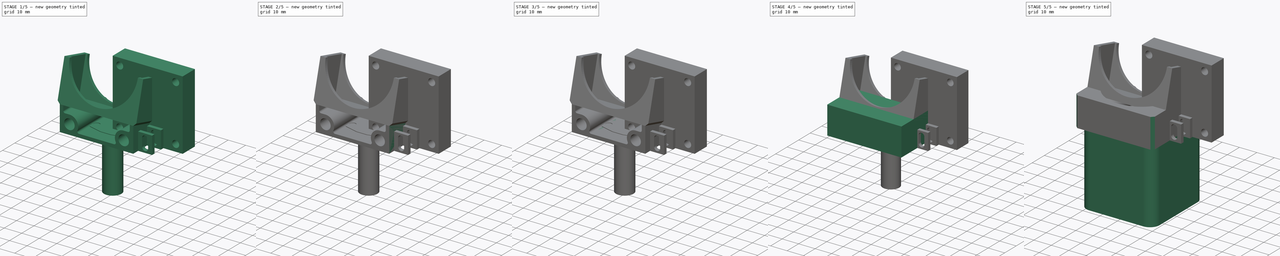
[diagram: build sequence overview — one tinted view per stage of 5, left to right]
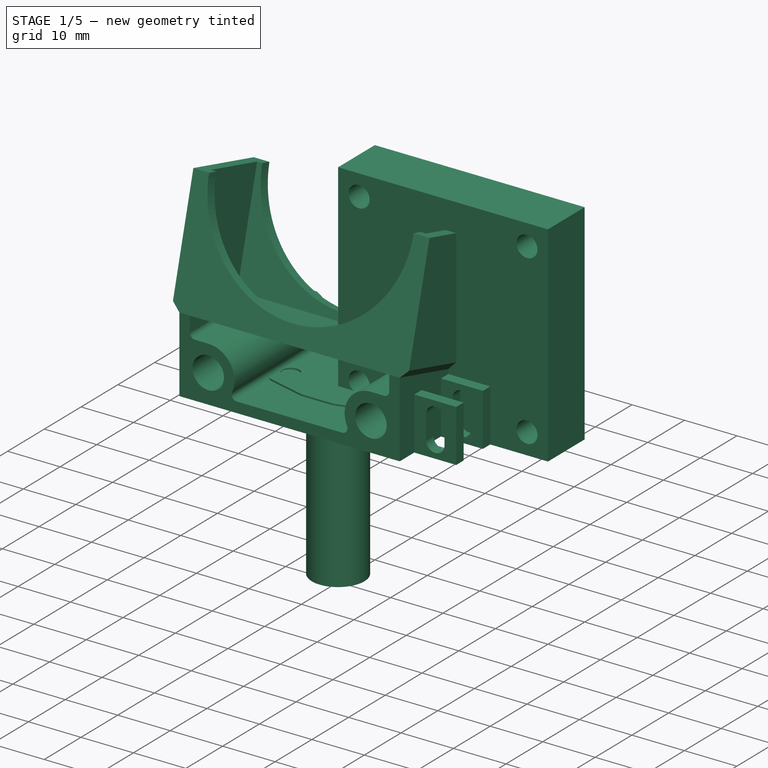
[diagram: stage 1 of 5 — iso view after this stage's code; geometry added in this stage tinted green]
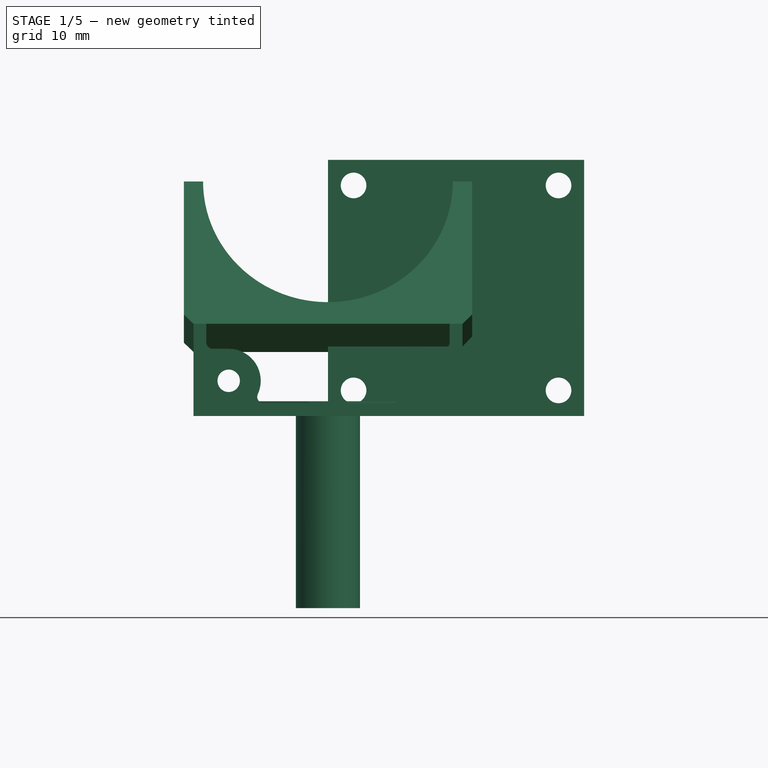
[diagram: stage 1 of 5 — front view after this stage's code; geometry added in this stage tinted green]
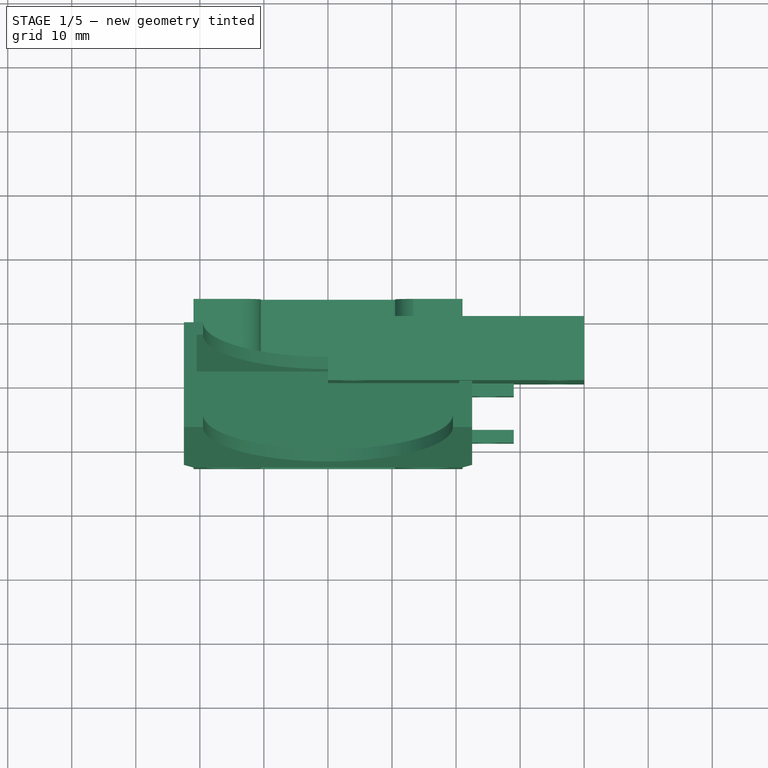
[diagram: stage 1 of 5 — top view after this stage's code; geometry added in this stage tinted green]
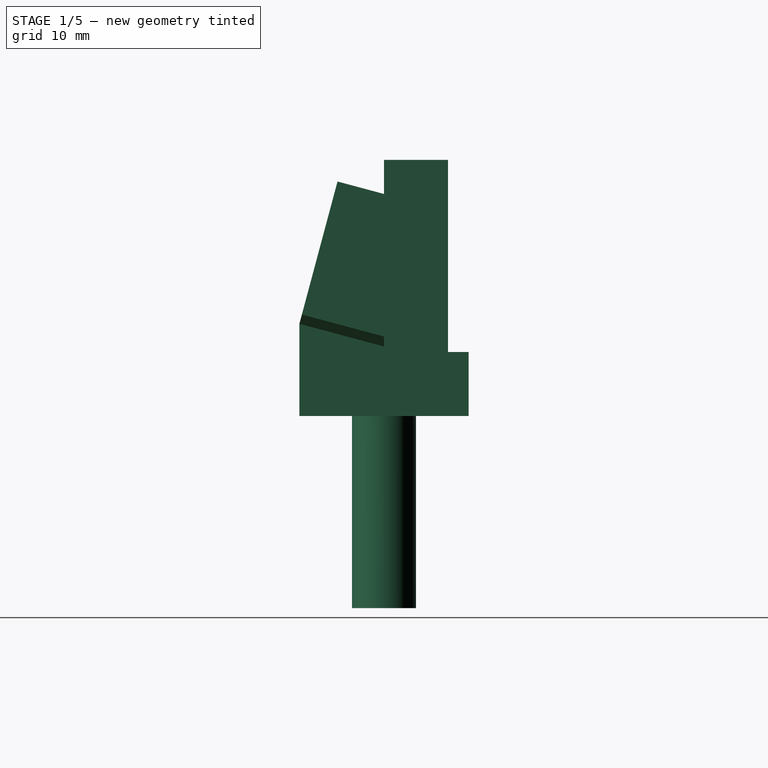
[diagram: stage 1 of 5 — right view after this stage's code; geometry added in this stage tinted green]
FCSTD DOCUMENT  (FreeCAD 0.17R13522 (Git))
Label: FanSensorMount_0.1
License: All rights reserved
LicenseURL: http://en.wikipedia.org/wiki/All_rights_reserved
objects: Sketcher::SketchObject×19, PartDesign::Pad×10, PartDesign::Pocket×9, Part::Feature×7, PartDesign::Body×6, PartDesign::Fillet×4, PartDesign::Chamfer×1, Part::MultiFuse×1, App::DocumentObjectGroup×1
note: 76 computed .brp shape members not serialized (recipe doc carries the construction recipe); baked Part::Feature solids carry a one-line shape summary decoded from their .brp

FEATURE [PartDesign::Body] Body002  label="Mount Bracket"
  Group = -> [Sketch004,Pad002,Sketch005,Pocket002,Sketch006,Pocket003,Sketch007,Pocket004,Fillet001,Fillet002,Sketch008,Pad003,Sketch013,Pad006,Sketch014,Pocket007]
  Origin = -> Origin002
  Tip = -> Pocket007
FEATURE [Part::Feature] Body002001  label="Mount Bracket001"
  shape: bbox 50 x 26.42 x 16.33 mm, 48 faces (baked)
FEATURE [Part::MultiFuse] Fusion  label="FanBracketUnion"
  Shapes = -> [Body001001,Body002001]
FEATURE [Part::Feature] Fusion001  label="FanBracket"
  shape: bbox 51.5 x 26.42 x 36.62 mm, 56 faces (baked)
FEATURE [Sketcher::SketchObject] Sketch015
  MapMode = 5
  Support = -> [XY_Plane004]
  sketch-geometry (4):
    g0: LineSegment StartX=0 StartY=0 StartZ=0 EndX=40 EndY=0 EndZ=0
    g1: LineSegment StartX=40 StartY=0 StartZ=0 EndX=40 EndY=10 EndZ=0
    g2: LineSegment StartX=40 StartY=10 StartZ=0 EndX=0 EndY=10 EndZ=0
    g3: LineSegment StartX=0 StartY=10 StartZ=0 EndX=0 EndY=0 EndZ=0
  constraints (11):
    c: Coincident(g0,g1)
    c: Coincident(g1,g2)
    c: Coincident(g2,g3)
    c: Coincident(g3,g0)
    c: Horizontal(g0)
    c: Horizontal(g2)
    c: Vertical(g1)
    c: Vertical(g3)
    c: Coincident(g0,g-1)
    c: Distance(g0) = 40
    c: Distance(g1) = 10
FEATURE [PartDesign::Pad] Pad007
  Length = 40
  Length2 = 100
  Profile = -> Sketch015
  Type = 0
FEATURE [Sketcher::SketchObject] Sketch016
  MapMode = 5
  Placement = pos=(0,0,0) rot=(1,0,0;1.5708rad)
  Support = -> [Pad007]
  sketch-geometry (8):
    g0: Circle CenterX=4 CenterY=36 CenterZ=0 NormalX=0 NormalY=0 NormalZ=1 AngleXU=0 Radius=2
    g1: Circle CenterX=36 CenterY=36 CenterZ=0 NormalX=0 NormalY=0 NormalZ=1 AngleXU=0 Radius=2
    g2: Circle CenterX=36 CenterY=4 CenterZ=0 NormalX=0 NormalY=0 NormalZ=1 AngleXU=0 Radius=2
    g3: Circle CenterX=4 CenterY=4 CenterZ=0 NormalX=0 NormalY=0 NormalZ=1 AngleXU=0 Radius=2
    g4: LineSegment [constr] StartX=4 StartY=36 StartZ=0 EndX=36 EndY=36 EndZ=0
    g5: LineSegment [constr] StartX=36 StartY=36 StartZ=0 EndX=36 EndY=4 EndZ=0
    g6: LineSegment [constr] StartX=36 StartY=4 StartZ=0 EndX=4 EndY=4 EndZ=0
    g7: LineSegment [constr] StartX=4 StartY=4 StartZ=0 EndX=4 EndY=36 EndZ=0
  constraints (20):
    c: Radius(g3) = 2
    c: Equal(g3,g0)
    c: Equal(g3,g1)
    c: Equal(g3,g2)
    c: Coincident(g4,g5)
    c: Coincident(g5,g6)
    c: Coincident(g6,g7)
    c: Coincident(g7,g4)
    c: Horizontal(g4)
    c: Horizontal(g6)
    c: Vertical(g5)
    c: Vertical(g7)
    c: Coincident(g4,g0)
    c: Coincident(g5,g2)
    c: Coincident(g1,g4)
    c: Coincident(g3,g6)
    c: Distance(g4) = 32
    c: Distance(g5) = 32
    c: DistanceY(g-1,g3) = 4
    c: DistanceX(g-1,g3) = 4
FEATURE [PartDesign::Pocket] Pocket008
  BaseFeature = -> Pad007
  Length = 5
  Length2 = 100
  Profile = -> Sketch016
  Type = 1
FEATURE [PartDesign::Body] Body001002002  label="Fan stand-in"
  Group = -> [Sketch015,Pad007,Sketch016,Pocket008]
  Origin = -> Origin004
  Tip = -> Pocket008
FEATURE [Part::Feature] Body001002002001  label="Fan stand-in001"
  Placement = pos=(-20,-9.31199,15.4259) rot=(1,0,0;6.02139rad)
  shape: bbox 40 x 20.01 x 41.23 mm, 10 faces (baked)
FEATURE [Sketcher::SketchObject] Sketch017
  MapMode = 5
  Support = -> [XY_Plane005]
  expr: Constraints[24] = 3.2000000000000002 / 2
  sketch-geometry (10):
    g0: ArcOfCircle CenterX=-9 CenterY=0 CenterZ=0 NormalX=0 NormalY=0 NormalZ=1 AngleXU=0 Radius=4 StartAngle=1.83275 EndAngle=4.45043
    g1: ArcOfCircle CenterX=9 CenterY=0 CenterZ=0 NormalX=0 NormalY=0 NormalZ=1 AngleXU=0 Radius=4 StartAngle=4.97435 EndAngle=7.59202
    g2: LineSegment StartX=-3 StartY=5.75 StartZ=0 EndX=3 EndY=5.75 EndZ=0
    g3: LineSegment StartX=-3 StartY=-5.75 StartZ=0 EndX=3 EndY=-5.75 EndZ=0
    g4: LineSegment StartX=-10.0359 StartY=3.86354 StartZ=0 EndX=-3 EndY=5.75 EndZ=0
    g5: LineSegment StartX=-10.0359 StartY=-3.86354 StartZ=0 EndX=-3 EndY=-5.75 EndZ=0
    g6: LineSegment StartX=3 StartY=-5.75 StartZ=0 EndX=10.0359 EndY=-3.86354 EndZ=0
    g7: LineSegment StartX=10.0359 StartY=3.86354 StartZ=0 EndX=3 EndY=5.75 EndZ=0
    g8: Circle CenterX=-9 CenterY=0 CenterZ=0 NormalX=0 NormalY=0 NormalZ=1 AngleXU=0 Radius=1.6
    g9: Circle CenterX=9 CenterY=0 CenterZ=0 NormalX=0 NormalY=0 NormalZ=1 AngleXU=0 Radius=1.6
  constraints (26):
    c: PointOnObject(g0,g-1)
    c: Radius(g0) = 4
    c: PointOnObject(g1,g-1)
    c: Radius(g1) = 4
    c: Distance(g-1,g0) = 9
    c: Distance(g-1,g1) = 9
    c: Horizontal(g2)
    c: Horizontal(g3)
    c: Equal(g2,g3)
    c: Distance(g2) = 6
    c: DistanceX(g-1,g2) = 3
    c: DistanceX(g-1,g3) = 3
    c: DistanceY(g3,g-1) = 5.75
    c: DistanceY(g-1,g2) = 5.75
    c: Coincident(g4,g2)
    c: Coincident(g5,g3)
    c: Coincident(g6,g3)
    c: Coincident(g7,g2)
    c: Tangent(g4,g0) = 1.5708
    c: Tangent(g5,g0) = -1.5708
    c: Tangent(g7,g1) = -1.5708
    c: Tangent(g6,g1) = -1.5708
    c: Coincident(g8,g0)
    c: Coincident(g9,g1)
    c: Radius(g9) = 1.6
    c: Equal(g9,g8)
FEATURE [PartDesign::Pad] Pad008
  Length = 2.3
  Length2 = 100
  Profile = -> Sketch017
  Type = 0
FEATURE [Sketcher::SketchObject] Sketch018
  MapMode = 5
  Placement = pos=(0,0,0) rot=(1,0,0;3.14159rad)
  Support = -> [Pad008]
  sketch-geometry (1):
    g0: Circle CenterX=0 CenterY=0 CenterZ=0 NormalX=0 NormalY=0 NormalZ=1 AngleXU=0 Radius=5
  constraints (2):
    c: Coincident(g0,g-1)
    c: Radius(g0) = 5
FEATURE [PartDesign::Pad] Pad009
  BaseFeature = -> Pad008
  Length = 30
  Length2 = 100
  Profile = -> Sketch018
  Type = 0
FEATURE [PartDesign::Body] Body001002002002  label="Sensor Stand-in"
  Group = -> [Sketch017,Pad008,Sketch018,Pad009]
  Origin = -> Origin005
  Tip = -> Pad009
FEATURE [Part::Feature] Body001002001001  label="Sensor Mount Refined"
  Placement = pos=(0,-9.25,10) rot=(1,0,0;3.14159rad)
  shape: bbox 30 x 24 x 10 mm, 24 faces (baked)
FEATURE [Part::Feature] Body001002002002001  label="Sensor Stand-in001"
  Placement = pos=(48,-4.625,10) rot=(0,0,1;1.5708rad)
  shape: bbox 11.5 x 26 x 32.3 mm, 14 faces (baked)
FEATURE [App::DocumentObjectGroup] Group  label="Assembly"
  Group = -> [Body003,Fusion,Fusion001,Body001002002001,Body001002002002001,Body001002001001]
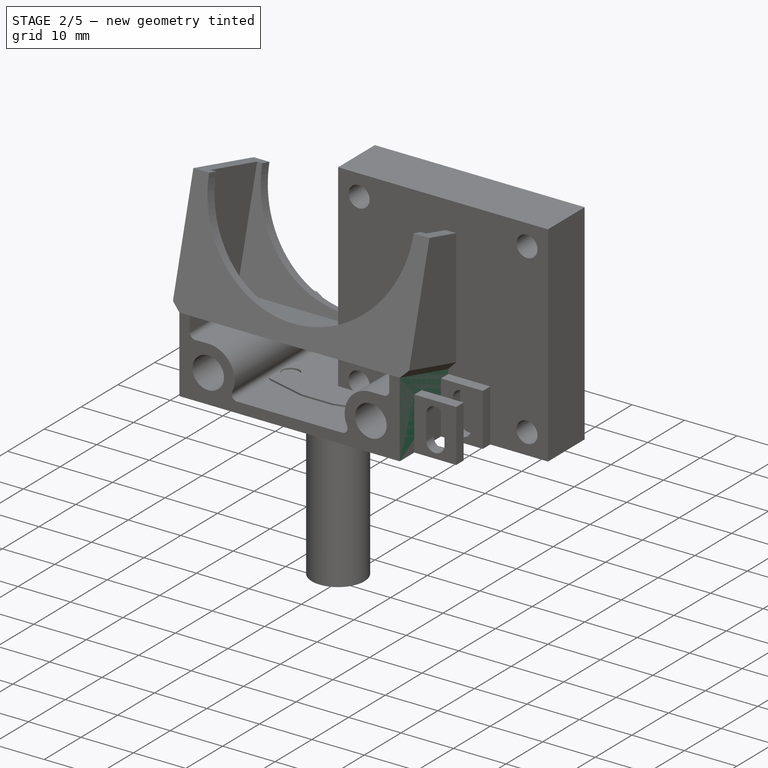
[diagram: stage 2 of 5 — iso view after this stage's code; geometry added in this stage tinted green]
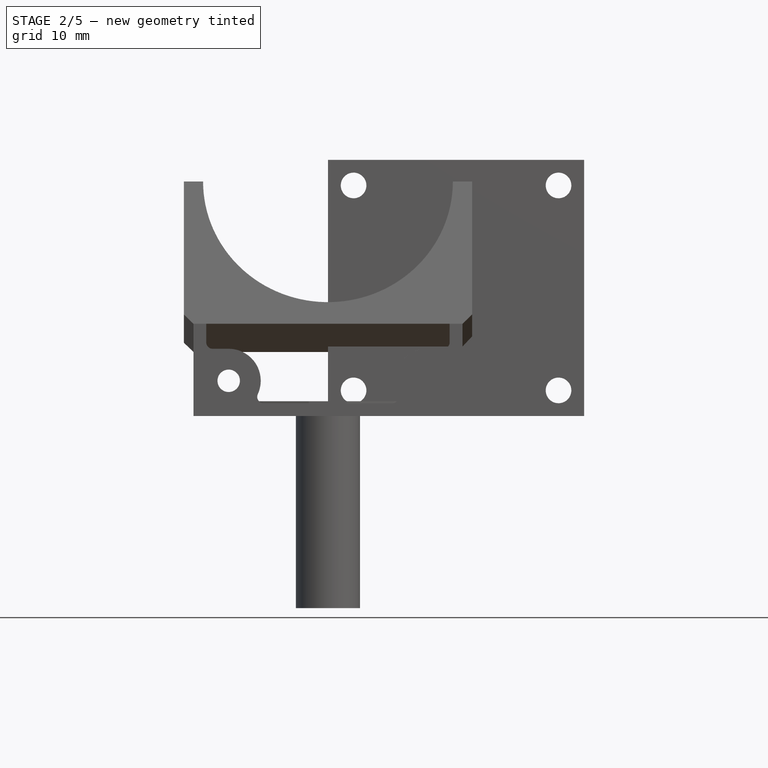
[diagram: stage 2 of 5 — front view after this stage's code; geometry added in this stage tinted green]
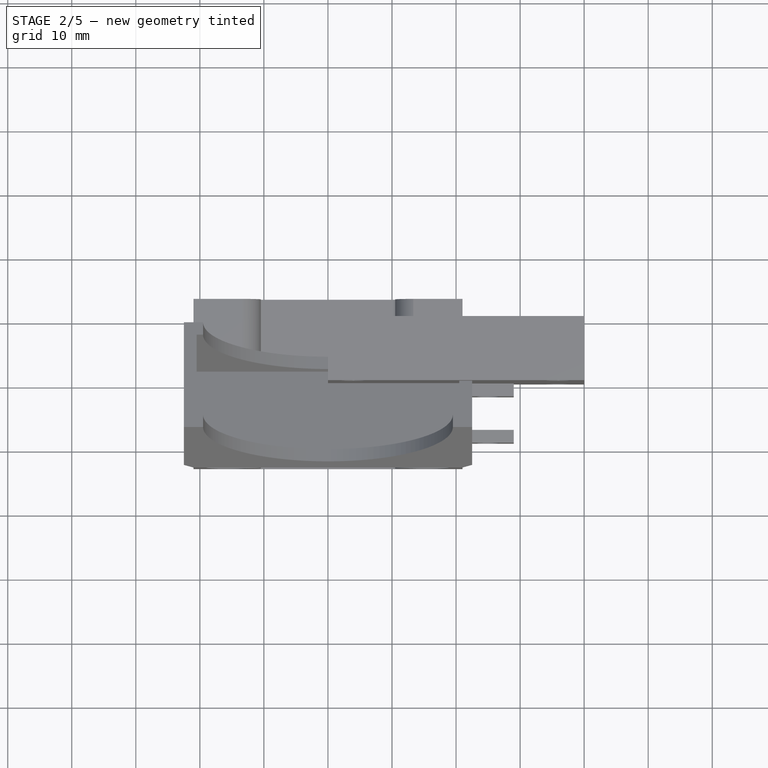
[diagram: stage 2 of 5 — top view after this stage's code; geometry added in this stage tinted green]
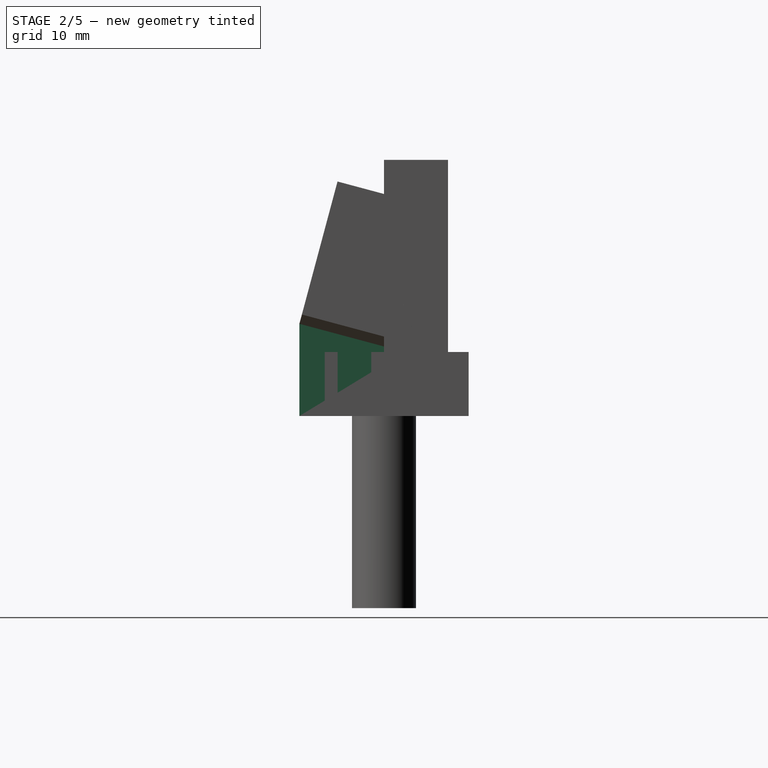
[diagram: stage 2 of 5 — right view after this stage's code; geometry added in this stage tinted green]
FEATURE [Sketcher::SketchObject] Sketch004
  MapMode = 5
  Placement = pos=(0,0,0) rot=(0.57735,0.57735,0.57735;2.0944rad)
  Support = -> [YZ_Plane002]
  sketch-geometry (5):
    g0: LineSegment StartX=-13.2104 StartY=0 StartZ=0 EndX=13.2104 EndY=0 EndZ=0
    g1: LineSegment StartX=13.2104 StartY=0 StartZ=0 EndX=13.2104 EndY=10 EndZ=0
    g2: LineSegment StartX=13.2104 StartY=10 StartZ=0 EndX=3.21037 EndY=10 EndZ=0
    g3: LineSegment StartX=3.21037 StartY=10 StartZ=0 EndX=-13.2104 EndY=14.3999 EndZ=0
    g4: LineSegment StartX=-13.2104 StartY=14.3999 StartZ=0 EndX=-13.2104 EndY=0 EndZ=0
  constraints (15):
    c: PointOnObject(g0,g-1)
    c: PointOnObject(g0,g-1)
    c: Coincident(g1,g0)
    c: Vertical(g1)
    c: Coincident(g2,g1)
    c: Horizontal(g2)
    c: Coincident(g3,g2)
    c: Coincident(g4,g3)
    c: Coincident(g4,g0)
    c: Vertical(g4)
    c: DistanceX(g2,g2) = 10
    c: Angle(g3,g0) = 0.261799
    c: Distance(g3) = 17
    c: Symmetric(g0,g0,g-1)
    c: DistanceY(g1,g1) = 10
FEATURE [PartDesign::Pad] Pad002
  Length = 42
  Length2 = 100
  Midplane = true
  Placement = pos=(0,0,0) rot=(0.57735,0.57735,0.57735;2.0944rad)
  Profile = -> Sketch004
  Type = 0
FEATURE [Sketcher::SketchObject] Sketch005
  ExternalGeometry = -> [Pad002]
  MapMode = 5
  Placement = pos=(0,-13.2104,0) rot=(-0.57735,-0.57735,0.57735;4.18879rad)
  Support = -> [Pad002]
  sketch-geometry (3):
    g0: Circle CenterX=-5.5 CenterY=-15.5 CenterZ=0 NormalX=0 NormalY=0 NormalZ=1 AngleXU=0 Radius=3
    g1: Circle CenterX=-5.5 CenterY=15.5 CenterZ=0 NormalX=0 NormalY=0 NormalZ=1 AngleXU=0 Radius=3
    g2: LineSegment [constr] StartX=-5.5 StartY=-15.5 StartZ=0 EndX=-5.5 EndY=15.5 EndZ=0
  constraints (8):
    c: Coincident(g2,g0)
    c: Coincident(g2,g1)
    c: Vertical(g2)
    c: Distance(g2) = 31
    c: Radius(g0) = 3
    c: Equal(g0,g1)
    c: DistanceY(g-3,g0) = 5.5
    c: DistanceX(g0,g-3) = 5.5
FEATURE [PartDesign::Pocket] Pocket002
  BaseFeature = -> Pad002
  Length = 24
  Length2 = 100
  Placement = pos=(0,0,0) rot=(0.57735,0.57735,0.57735;2.0944rad)
  Profile = -> Sketch005
  Type = 0
FEATURE [Sketcher::SketchObject] Sketch006
  ExternalGeometry = -> [Pocket002]
  MapMode = 5
  Placement = pos=(0,-13.2104,0) rot=(-0.57735,-0.57735,0.57735;4.18879rad)
  Support = -> [Pocket002]
  sketch-geometry (9):
    g0: LineSegment StartX=-2 StartY=-11.9293 StartZ=0 EndX=-2 EndY=11.9293 EndZ=0
    g1: GeomPoint X=-2 Y=0 Z=0
    g2: ArcOfCircle CenterX=-5.5 CenterY=-15.5 CenterZ=0 NormalX=0 NormalY=0 NormalZ=1 AngleXU=0 Radius=5 StartAngle=0.795399 EndAngle=3.14159
    g3: ArcOfCircle CenterX=-5.5 CenterY=15.5 CenterZ=0 NormalX=0 NormalY=0 NormalZ=1 AngleXU=0 Radius=5 StartAngle=3.14159 EndAngle=5.48779
    g4: LineSegment StartX=-10.5 StartY=15.5 StartZ=0 EndX=-10.5 EndY=19 EndZ=0
    g5: LineSegment StartX=-10.5 StartY=19 StartZ=0 EndX=-14.3999 EndY=19 EndZ=0
    g6: LineSegment StartX=-14.3999 StartY=19 StartZ=0 EndX=-14.3999 EndY=-19 EndZ=0
    g7: LineSegment StartX=-14.3999 StartY=-19 StartZ=0 EndX=-10.5 EndY=-19 EndZ=0
    g8: LineSegment StartX=-10.5 StartY=-19 StartZ=0 EndX=-10.5 EndY=-15.5 EndZ=0
  constraints (26):
    c: Vertical(g0)
    c: PointOnObject(g1,g0)
    c: PointOnObject(g1,g-1)
    c: Symmetric(g0,g0,g1)
    c: Coincident(g2,g-4)
    c: Coincident(g2,g0)
    c: Coincident(g3,g-3)
    c: Coincident(g3,g0)
    c: DistanceX(g0,g-1) = 2
    c: Radius(g2) = 5
    c: Coincident(g3,g4)
    c: Vertical(g4)
    c: Coincident(g4,g5)
    c: Horizontal(g5)
    c: Coincident(g5,g6)
    c: Vertical(g6)
    c: Coincident(g6,g7)
    c: Horizontal(g7)
    c: Coincident(g7,g8)
    c: Coincident(g8,g2)
    c: Vertical(g8)
    c: DistanceX(g-7,g5) = 0
    c: DistanceY(g4,g-7) = 2
    c: DistanceY(g-7,g7) = 2
    c: DistanceX(g2,g2) = 5
    c: DistanceX(g3,g3) = 5
FEATURE [PartDesign::Pocket] Pocket003
  BaseFeature = -> Pocket002
  Length = 5
  Length2 = 100
  Placement = pos=(0,0,0) rot=(0.57735,0.57735,0.57735;2.0944rad)
  Profile = -> Sketch006
  Type = 1
FEATURE [Sketcher::SketchObject] Sketch007
  MapMode = 5
  Placement = pos=(0,10.7896,0) rot=(-0.57735,-0.57735,0.57735;4.18879rad)
  Support = -> [Pocket003]
  sketch-geometry (2):
    g0: Circle CenterX=-5.5 CenterY=15.5 CenterZ=0 NormalX=0 NormalY=0 NormalZ=1 AngleXU=0 Radius=1.75
    g1: Circle CenterX=-5.5 CenterY=-15.5 CenterZ=0 NormalX=0 NormalY=0 NormalZ=1 AngleXU=0 Radius=1.75
FEATURE [PartDesign::Pocket] Pocket004
  BaseFeature = -> Pocket003
  Length = 5
  Length2 = 100
  Placement = pos=(0,0,0) rot=(0.57735,0.57735,0.57735;2.0944rad)
  Profile = -> Sketch007
  Type = 1
FEATURE [PartDesign::Fillet] Fillet001
  Base = -> Pocket004 [Edge39,Edge37]
  BaseFeature = -> Pocket004
  Placement = pos=(0,0,0) rot=(0.57735,0.57735,0.57735;2.0944rad)
  Radius = 1
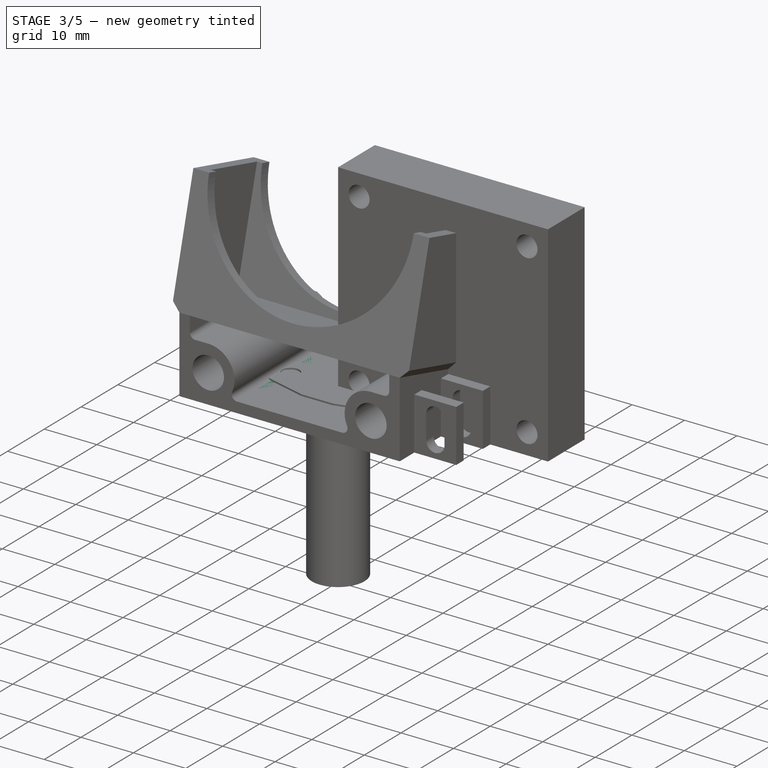
[diagram: stage 3 of 5 — iso view after this stage's code; geometry added in this stage tinted green]
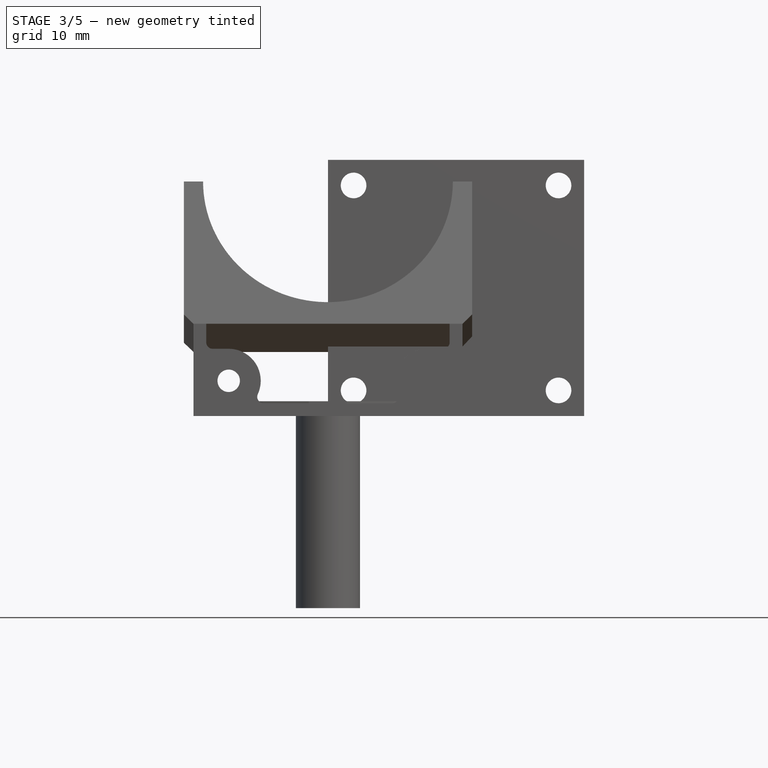
[diagram: stage 3 of 5 — front view after this stage's code; geometry added in this stage tinted green]
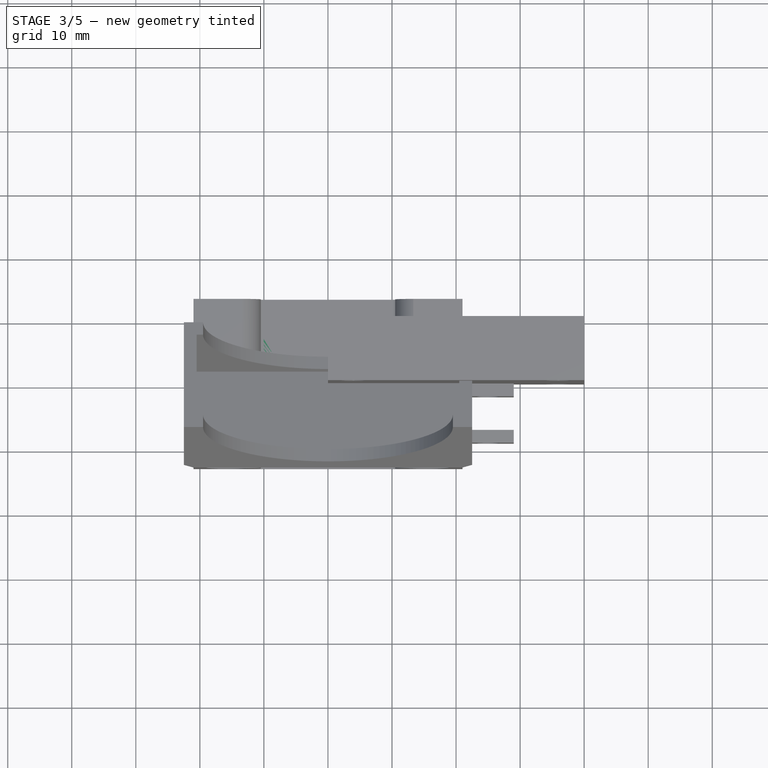
[diagram: stage 3 of 5 — top view after this stage's code; geometry added in this stage tinted green]
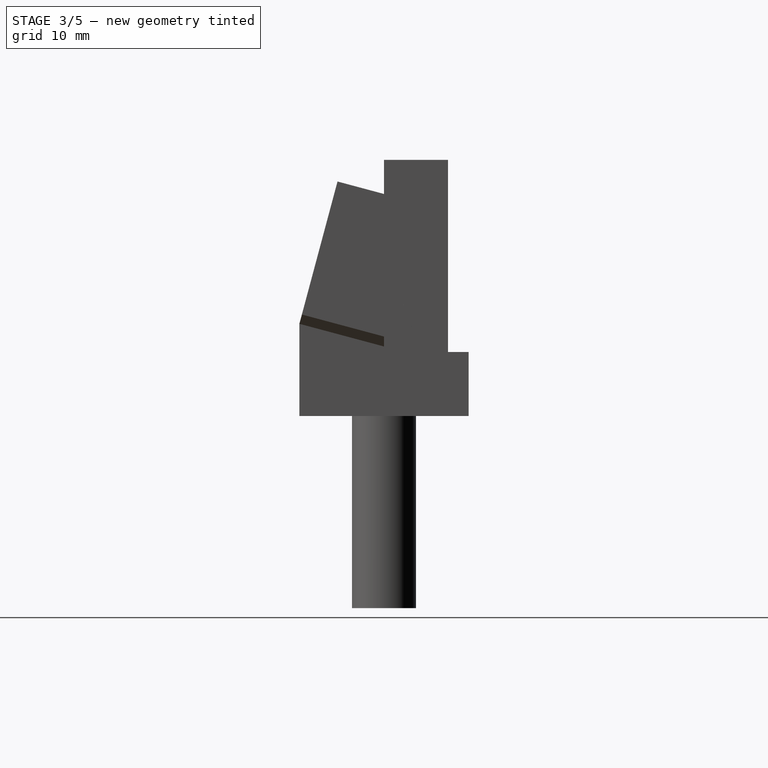
[diagram: stage 3 of 5 — right view after this stage's code; geometry added in this stage tinted green]
FEATURE [PartDesign::Fillet] Fillet002
  Base = -> Fillet001 [Edge41,Edge24]
  BaseFeature = -> Fillet001
  Placement = pos=(0,0,0) rot=(0.57735,0.57735,0.57735;2.0944rad)
  Radius = 1
FEATURE [PartDesign::Body] Body001  label="Fan Holder"
  Group = -> [Sketch001,Pad001,Sketch002,Pocket,Sketch003,Pocket001,Chamfer]
  Origin = -> Origin001
  Tip = -> Chamfer
FEATURE [Part::Feature] Body001001  label="Fan Holder001"
  Placement = pos=(0,9.16321,32.2163) rot=(1,0,0;1.309rad)
  shape: bbox 45 x 22.37 x 26.62 mm, 16 faces (baked)
FEATURE [Sketcher::SketchObject] Sketch008
  ExternalGeometry = -> [Fillet002]
  MapMode = 5
  Placement = pos=(0,2.71505,10.1327) rot=(-0.129428,-0.129428,-0.983106;1.58783rad)
  Support = -> [Fillet002]
  sketch-geometry (4):
    g0: LineSegment StartX=-0.512788 StartY=21 StartZ=0 EndX=16.4872 EndY=21 EndZ=0
    g1: LineSegment StartX=16.4872 StartY=21 StartZ=0 EndX=16.4872 EndY=-21 EndZ=0
    g2: LineSegment StartX=16.4872 StartY=-21 StartZ=0 EndX=-0.512788 EndY=-21 EndZ=0
    g3: LineSegment StartX=-0.512788 StartY=-21 StartZ=0 EndX=-0.512788 EndY=21 EndZ=0
  constraints (10):
    c: Coincident(g0,g1)
    c: Coincident(g1,g2)
    c: Coincident(g2,g3)
    c: Coincident(g3,g0)
    c: Horizontal(g0)
    c: Horizontal(g2)
    c: Vertical(g1)
    c: Vertical(g3)
    c: Coincident(g0,g-3)
    c: Coincident(g1,g-4)
FEATURE [PartDesign::Pad] Pad003
  BaseFeature = -> Fillet002
  Length = 2
  Length2 = 100
  Placement = pos=(0,0,0) rot=(0.57735,0.57735,0.57735;2.0944rad)
  Profile = -> Sketch008
  Type = 0
FEATURE [Sketcher::SketchObject] Sketch009
  MapMode = 5
  Support = -> [XY_Plane003]
  sketch-geometry (11):
    g0: Circle CenterX=0 CenterY=-9 CenterZ=0 NormalX=0 NormalY=0 NormalZ=1 AngleXU=0 Radius=1.75
    g1: Circle CenterX=0 CenterY=9 CenterZ=0 NormalX=0 NormalY=0 NormalZ=1 AngleXU=0 Radius=1.75
    g2: ArcOfCircle CenterX=0 CenterY=-9 CenterZ=0 NormalX=0 NormalY=0 NormalZ=1 AngleXU=0 Radius=3 StartAngle=4.71239 EndAngle=7.85398
    g3: ArcOfCircle CenterX=0 CenterY=9 CenterZ=0 NormalX=0 NormalY=0 NormalZ=1 AngleXU=0 Radius=3 StartAngle=4.71239 EndAngle=7.85398
    g4: LineSegment StartX=0 StartY=-12 StartZ=0 EndX=-5 EndY=-12 EndZ=0
    g5: LineSegment StartX=-5.00004 StartY=12 StartZ=0 EndX=0 EndY=12 EndZ=0
    g6: ArcOfCircle CenterX=-5 CenterY=0 CenterZ=0 NormalX=0 NormalY=0 NormalZ=1 AngleXU=0 Radius=6 StartAngle=1.5708 EndAngle=4.71239
    g7: LineSegment StartX=-5 StartY=-6 StartZ=0 EndX=0 EndY=-6 EndZ=0
    g8: LineSegment StartX=-5 StartY=6 StartZ=0 EndX=0 EndY=6 EndZ=0
    g9: GeomPoint X=-11 Y=0 Z=0
    g10: ArcOfCircle CenterX=-5 CenterY=0 CenterZ=0 NormalX=0 NormalY=0 NormalZ=1 AngleXU=0 Radius=12 StartAngle=1.5708 EndAngle=4.71239
  constraints (34):
    c: PointOnObject(g0,g-2)
    c: PointOnObject(g1,g-2)
    c: Radius(g0) = 1.75
    c: Equal(g0,g1)
    c: Symmetric(g1,g0,g-1)
    c: Coincident(g2,g0)
    c: PointOnObject(g2,g-2)
    c: PointOnObject(g2,g-2)
    c: Coincident(g3,g1)
    c: PointOnObject(g3,g-2)
    c: PointOnObject(g3,g-2)
    c: Radius(g3) = 3
    c: Equal(g3,g2)
    c: DistanceY(g0,g1) = 18
    c: Coincident(g4,g2)
    c: Coincident(g5,g3)
    c: Horizontal(g5)
    c: Horizontal(g4)
    c: PointOnObject(g6,g-1)
    c: Coincident(g7,g6)
    c: Coincident(g8,g6)
    c: Coincident(g8,g3)
    c: Horizontal(g8)
    c: Horizontal(g7)
    c: Coincident(g7,g2)
    c: PointOnObject(g9,g6)
    c: PointOnObject(g9,g-1)
    c: DistanceX(g9,g-1) = 11
    c: Radius(g6) = 6
    c: Coincident(g10,g6)
    c: Coincident(g10,g4)
    c: Coincident(g10,g5)
    c: Distance(g4) = 5
    c: Radius(g10) = 12
FEATURE [PartDesign::Pad] Pad004
  Length = 2
  Length2 = 100
  Profile = -> Sketch009
  Type = 0
FEATURE [PartDesign::Body] Body001002  label="Sensor Mount"
  Group = -> [Sketch009,Pad004,Sketch010,Pad005,Sketch011,Pocket005,Sketch012,Pocket006,Fillet003]
  Origin = -> Origin003
  Tip = -> Fillet003
FEATURE [Sketcher::SketchObject] Sketch013
  MapMode = 5
  Placement = pos=(21,0,0) rot=(0.57735,0.57735,0.57735;2.0944rad)
  Support = -> [Pad003]
  sketch-geometry (8):
    g0: LineSegment StartX=-9.25 StartY=10 StartZ=0 EndX=-7.25 EndY=10 EndZ=0
    g1: LineSegment StartX=-7.25 StartY=10 StartZ=0 EndX=-7.25 EndY=0 EndZ=0
    g2: LineSegment StartX=-7.25 StartY=0 StartZ=0 EndX=-9.25 EndY=0 EndZ=0
    g3: LineSegment StartX=-9.25 StartY=0 StartZ=0 EndX=-9.25 EndY=10 EndZ=0
    g4: LineSegment StartX=-2 StartY=10 StartZ=0 EndX=0 EndY=10 EndZ=0
    g5: LineSegment StartX=0 StartY=10 StartZ=0 EndX=0 EndY=0 EndZ=0
    g6: LineSegment StartX=0 StartY=0 StartZ=0 EndX=-2 EndY=0 EndZ=0
    g7: LineSegment StartX=-2 StartY=0 StartZ=0 EndX=-2 EndY=10 EndZ=0
  constraints (23):
    c: Coincident(g0,g1)
    c: Coincident(g1,g2)
    c: Coincident(g2,g3)
    c: Coincident(g3,g0)
    c: Horizontal(g0)
    c: Horizontal(g2)
    c: Vertical(g1)
    c: Vertical(g3)
    c: Coincident(g4,g5)
    c: Coincident(g5,g6)
    c: Coincident(g6,g7)
    c: Coincident(g7,g4)
    c: Horizontal(g4)
    c: Horizontal(g6)
    c: Vertical(g5)
    c: Vertical(g7)
    c: DistanceX(g1,g6) = 5.25
    c: Distance(g6) = 2
    c: Distance(g2) = 2
    c: Coincident(g5,g-1)
    c: DistanceY(g-1,g1) = 0
    c: Distance(g1) = 10
    c: Distance(g5) = 10
FEATURE [PartDesign::Pad] Pad006
  BaseFeature = -> Pad003
  Length = 8
  Length2 = 100
  Placement = pos=(0,0,0) rot=(0.57735,0.57735,0.57735;2.0944rad)
  Profile = -> Sketch013
  Type = 0
FEATURE [Sketcher::SketchObject] Sketch014
  ExternalGeometry = -> [Pad006]
  MapMode = 5
  Placement = pos=(0,-9.25,0) rot=(-0.57735,-0.57735,0.57735;4.18879rad)
  Support = -> [Pad006]
  sketch-geometry (6):
    g0: ArcOfCircle CenterX=-2.75 CenterY=25 CenterZ=0 NormalX=0 NormalY=0 NormalZ=1 AngleXU=0 Radius=1.75 StartAngle=4.71239 EndAngle=7.85398
    g1: ArcOfCircle CenterX=-7.25 CenterY=25 CenterZ=0 NormalX=0 NormalY=0 NormalZ=1 AngleXU=0 Radius=1.75 StartAngle=1.5708 EndAngle=4.71239
    g2: LineSegment StartX=-2.75 StartY=26.75 StartZ=0 EndX=-7.25 EndY=26.75 EndZ=0
    g3: LineSegment StartX=-2.75 StartY=23.25 StartZ=0 EndX=-7.25 EndY=23.25 EndZ=0
    g4: LineSegment [constr] StartX=-2.75 StartY=26.75 StartZ=0 EndX=-2.75 EndY=23.25 EndZ=0
    g5: LineSegment [constr] StartX=-7.25 StartY=26.75 StartZ=0 EndX=-7.25 EndY=23.25 EndZ=0
  constraints (18):
    c: Radius(g1) = 1.75
    c: Equal(g1,g0)
    c: DistanceY(g0,g-3) = 4
    c: Coincident(g2,g0)
    c: Coincident(g2,g1)
    c: Horizontal(g2)
    c: Coincident(g3,g0)
    c: Coincident(g3,g1)
    c: DistanceX(g-3,g1) = 2.75
    c: Equal(g2,g3)
    c: Coincident(g4,g0)
    c: Coincident(g4,g0)
    c: Vertical(g4)
    c: Coincident(g5,g1)
    c: Coincident(g5,g1)
    c: PointOnObject(g0,g4)
    c: PointOnObject(g1,g5)
    c: DistanceX(g0,g-3) = 2.75
FEATURE [PartDesign::Pocket] Pocket007
  BaseFeature = -> Pad006
  Length = 5
  Length2 = 100
  Placement = pos=(0,0,0) rot=(0.57735,0.57735,0.57735;2.0944rad)
  Profile = -> Sketch014
  Type = 1
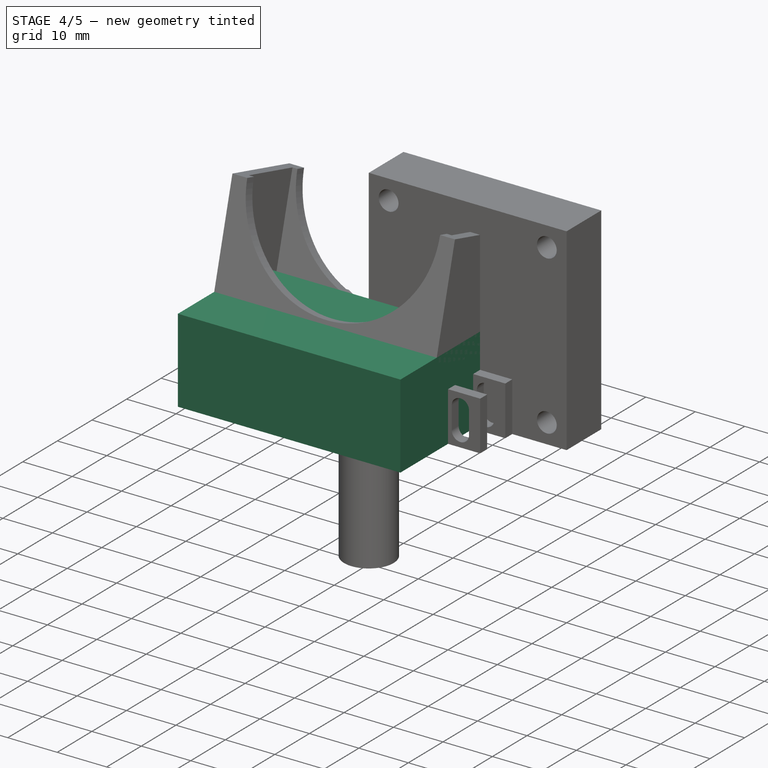
[diagram: stage 4 of 5 — iso view after this stage's code; geometry added in this stage tinted green]
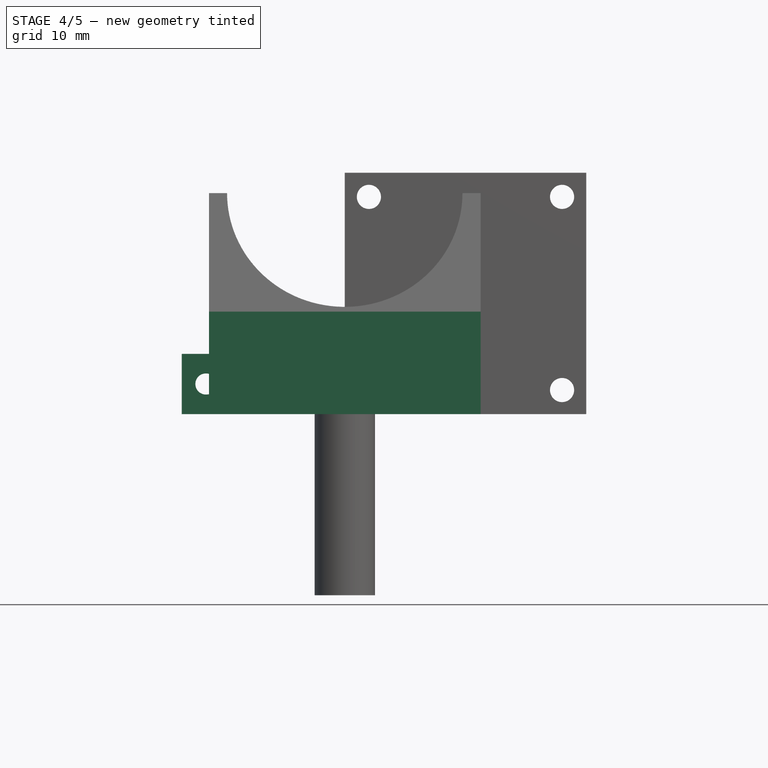
[diagram: stage 4 of 5 — front view after this stage's code; geometry added in this stage tinted green]
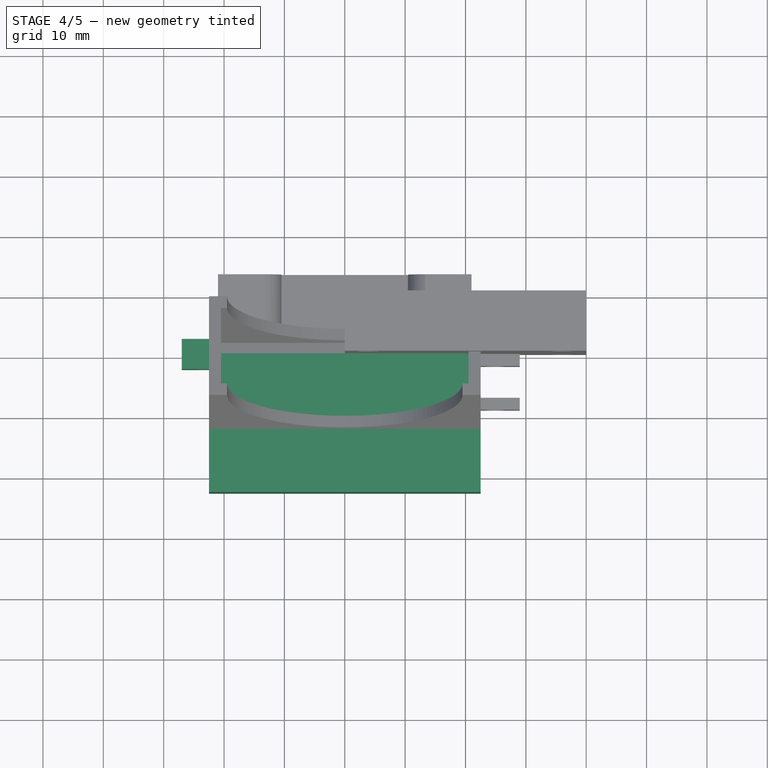
[diagram: stage 4 of 5 — top view after this stage's code; geometry added in this stage tinted green]
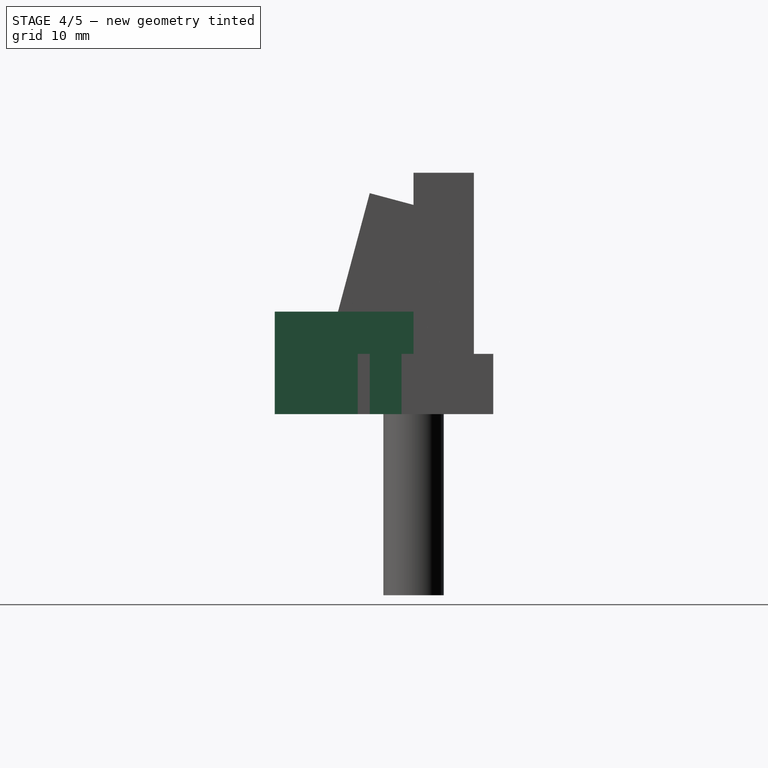
[diagram: stage 4 of 5 — right view after this stage's code; geometry added in this stage tinted green]
FEATURE [PartDesign::Body] Body  label="Nema 17 stand-in"
  Group = -> [Sketch,Pad,Fillet]
  Origin = -> Origin
  Tip = -> Fillet
FEATURE [Sketcher::SketchObject] Sketch001
  MapMode = 5
  Support = -> [XY_Plane001]
  sketch-geometry (4):
    g0: LineSegment StartX=-22.5 StartY=0 StartZ=0 EndX=22.5 EndY=0 EndZ=0
    g1: LineSegment StartX=22.5 StartY=0 StartZ=0 EndX=22.5 EndY=-23 EndZ=0
    g2: LineSegment StartX=22.5 StartY=-23 StartZ=0 EndX=-22.5 EndY=-23 EndZ=0
    g3: LineSegment StartX=-22.5 StartY=-23 StartZ=0 EndX=-22.5 EndY=0 EndZ=0
  constraints (12):
    c: Coincident(g0,g1)
    c: Coincident(g1,g2)
    c: Coincident(g2,g3)
    c: Coincident(g3,g0)
    c: Horizontal(g0)
    c: Horizontal(g2)
    c: Vertical(g1)
    c: Vertical(g3)
    c: PointOnObject(g0,g-1)
    c: DistanceY(g1,g0) = 23
    c: DistanceX(g2,g1) = 45
    c: Symmetric(g0,g0,g-1)
FEATURE [PartDesign::Pad] Pad001
  Length = 17
  Length2 = 100
  Profile = -> Sketch001
  Type = 0
FEATURE [Sketcher::SketchObject] Sketch010
  MapMode = 5
  Support = -> [XY_Plane003]
  sketch-geometry (5):
    g0: LineSegment StartX=-27 StartY=2.5 StartZ=0 EndX=-12 EndY=2.5 EndZ=0
    g1: LineSegment StartX=-12 StartY=2.5 StartZ=0 EndX=-12 EndY=-2.5 EndZ=0
    g2: LineSegment StartX=-12 StartY=-2.5 StartZ=0 EndX=-27 EndY=-2.5 EndZ=0
    g3: LineSegment StartX=-27 StartY=-2.5 StartZ=0 EndX=-27 EndY=2.5 EndZ=0
    g4: GeomPoint X=-27 Y=0 Z=0
  constraints (13):
    c: Coincident(g0,g1)
    c: Coincident(g1,g2)
    c: Coincident(g2,g3)
    c: Coincident(g3,g0)
    c: Horizontal(g0)
    c: Horizontal(g2)
    c: Vertical(g1)
    c: Vertical(g3)
    c: DistanceY(g3,g3) = 5
    c: DistanceX(g0,g0) = 15
    c: PointOnObject(g4,g-1)
    c: Symmetric(g0,g2,g4)
    c: DistanceX(g1,g-1) = 12
FEATURE [PartDesign::Pad] Pad005
  BaseFeature = -> Pad004
  Length = 10
  Length2 = 100
  Profile = -> Sketch010
  Type = 0
FEATURE [Sketcher::SketchObject] Sketch011
  ExternalGeometry = -> [Pad005]
  MapMode = 5
  Placement = pos=(0,-2.5,0) rot=(1,0,0;1.5708rad)
  Support = -> [Pad005]
  sketch-geometry (3):
    g0: LineSegment StartX=-12 StartY=2 StartZ=0 EndX=-20 EndY=10 EndZ=0
    g1: LineSegment StartX=-20 StartY=10 StartZ=0 EndX=-12 EndY=10 EndZ=0
    g2: LineSegment StartX=-12 StartY=10 StartZ=0 EndX=-12 EndY=2 EndZ=0
  constraints (7):
    c: Coincident(g0,g-3)
    c: PointOnObject(g0,g-4)
    c: Coincident(g1,g0)
    c: Coincident(g1,g-4)
    c: Coincident(g2,g1)
    c: Coincident(g2,g0)
    c: Angle(g0,g1) = 0.785398
FEATURE [PartDesign::Pocket] Pocket005
  BaseFeature = -> Pad005
  Length = 5
  Length2 = 100
  Profile = -> Sketch011
  Type = 0
FEATURE [Sketcher::SketchObject] Sketch012
  ExternalGeometry = -> [Pocket005]
  MapMode = 5
  Placement = pos=(0,-2.5,0) rot=(1,0,0;1.5708rad)
  Support = -> [Pocket005]
  sketch-geometry (1):
    g0: Circle CenterX=-23 CenterY=5 CenterZ=0 NormalX=0 NormalY=0 NormalZ=1 AngleXU=0 Radius=1.75
  constraints (3):
    c: Radius(g0) = 1.75
    c: DistanceX(g-3,g0) = 4
    c: DistanceY(g-3,g0) = 5
FEATURE [PartDesign::Pocket] Pocket006
  BaseFeature = -> Pocket005
  Length = 5
  Length2 = 100
  Profile = -> Sketch012
  Type = 0
FEATURE [PartDesign::Fillet] Fillet003
  Base = -> Pocket006 [Edge24,Edge22,Edge26,Edge43,Edge6]
  BaseFeature = -> Pocket006
  Radius = 2
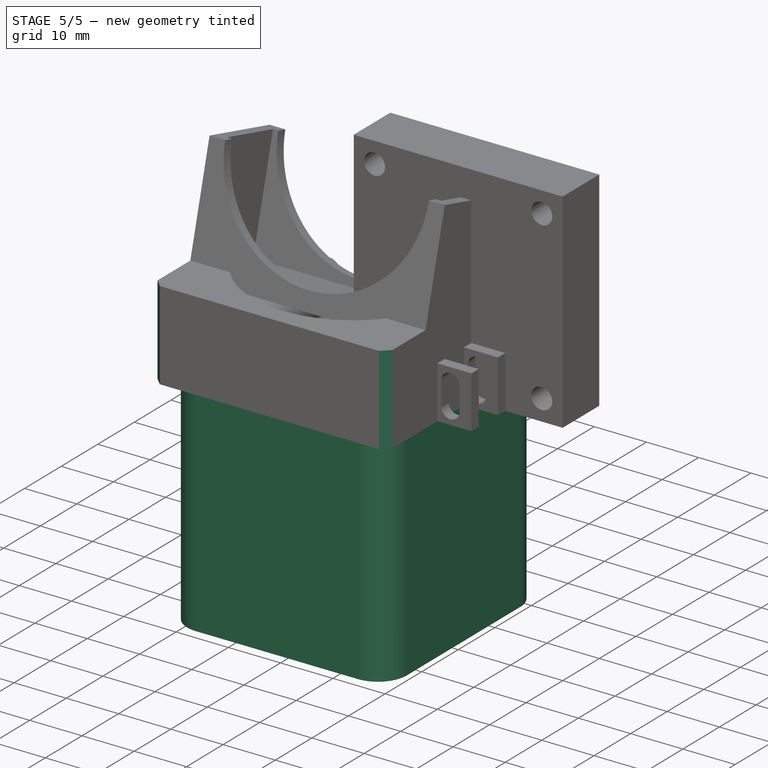
[diagram: stage 5 of 5 — iso view after this stage's code; geometry added in this stage tinted green]
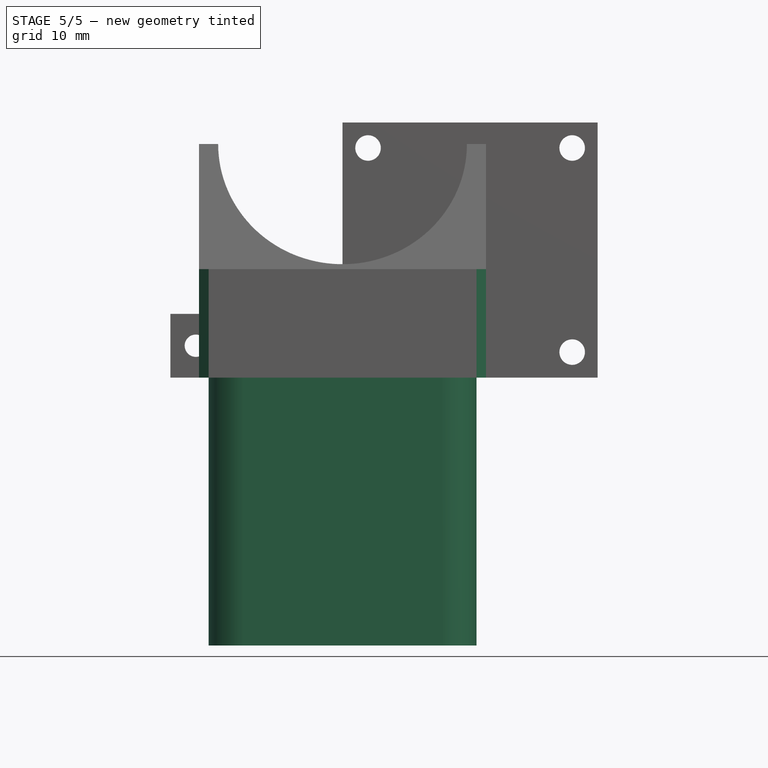
[diagram: stage 5 of 5 — front view after this stage's code; geometry added in this stage tinted green]
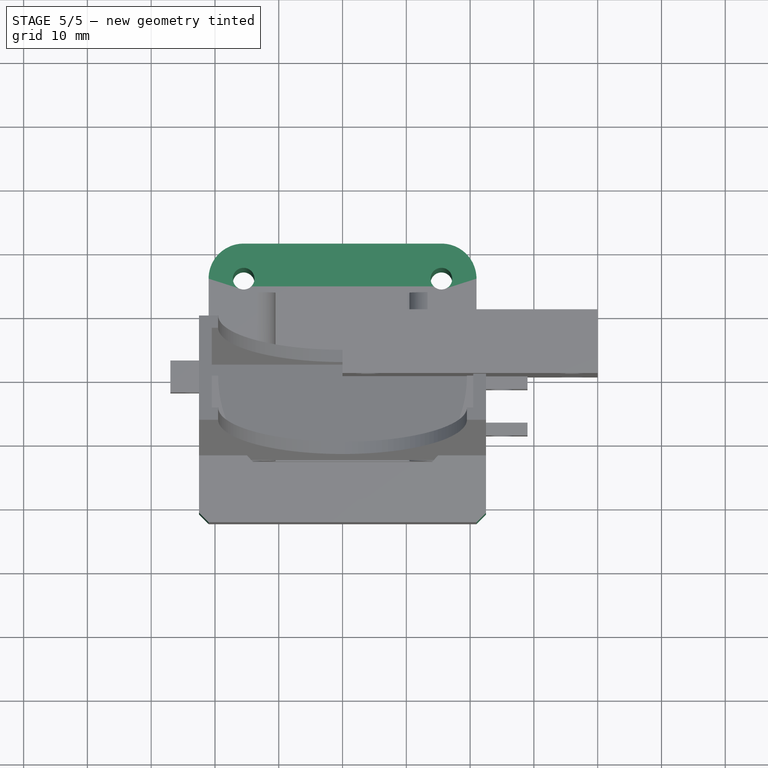
[diagram: stage 5 of 5 — top view after this stage's code; geometry added in this stage tinted green]
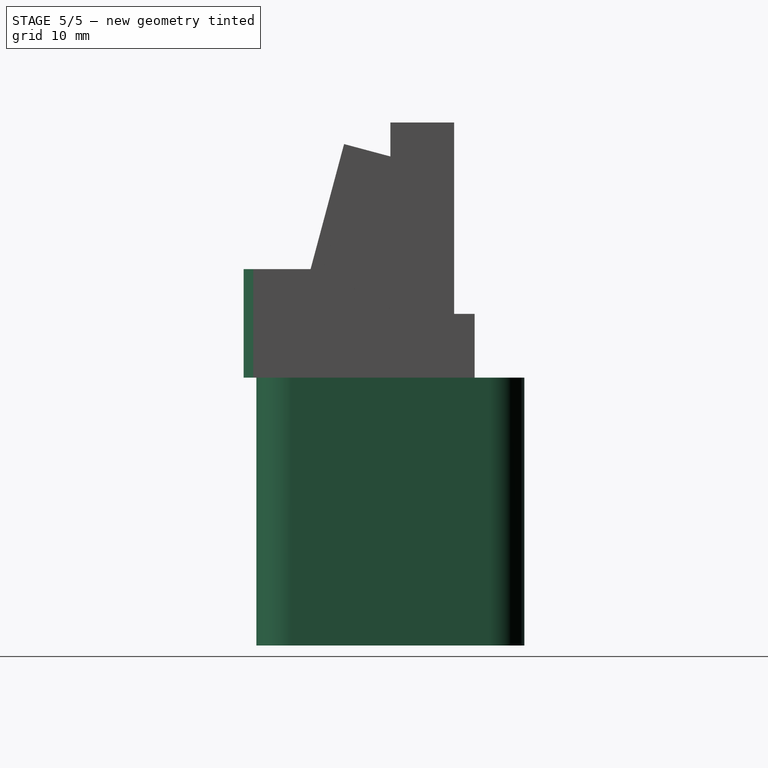
[diagram: stage 5 of 5 — right view after this stage's code; geometry added in this stage tinted green]
FEATURE [Sketcher::SketchObject] Sketch
  MapMode = 5
  Support = -> [XY_Plane]
  expr: Constraints[15] = 3.3999999999999999 / 2
  sketch-geometry (8):
    g0: LineSegment StartX=-21 StartY=21 StartZ=0 EndX=21 EndY=21 EndZ=0
    g1: LineSegment StartX=21 StartY=21 StartZ=0 EndX=21 EndY=-21 EndZ=0
    g2: LineSegment StartX=21 StartY=-21 StartZ=0 EndX=-21 EndY=-21 EndZ=0
    g3: LineSegment StartX=-21 StartY=-21 StartZ=0 EndX=-21 EndY=21 EndZ=0
    g4: Circle CenterX=-15.5 CenterY=-15.5 CenterZ=0 NormalX=0 NormalY=0 NormalZ=1 AngleXU=0 Radius=1.7
    g5: Circle CenterX=-15.5 CenterY=15.5 CenterZ=0 NormalX=0 NormalY=0 NormalZ=1 AngleXU=0 Radius=1.7
    g6: Circle CenterX=15.5 CenterY=15.5 CenterZ=0 NormalX=0 NormalY=0 NormalZ=1 AngleXU=0 Radius=1.7
    g7: Circle CenterX=15.5 CenterY=-15.5 CenterZ=0 NormalX=0 NormalY=0 NormalZ=1 AngleXU=0 Radius=1.7
  constraints (23):
    c: Coincident(g0,g1)
    c: Coincident(g1,g2)
    c: Coincident(g2,g3)
    c: Coincident(g3,g0)
    c: Horizontal(g0)
    c: Horizontal(g2)
    c: Vertical(g1)
    c: Symmetric(g1,g0,g-1)
    c: Symmetric(g0,g2,g-1)
    c: Distance(g0) = 42
    c: Distance(g1) = 42
    c: DistanceY(g7,g6) = 31
    c: DistanceX(g4,g7) = 31
    c: Symmetric(g6,g4,g-1)
    c: Symmetric(g5,g7,g-1)
    c: Radius(g5) = 1.7
    c: Equal(g5,g6)
    c: Equal(g5,g7)
    c: Equal(g5,g4)
    c: DistanceX(g5,g7) = 31
    c: DistanceY(g7,g5) = 31
    c: DistanceY(g2,g4) = 5.5
    c: DistanceX(g2,g4) = 5.5
FEATURE [PartDesign::Pad] Pad
  Length = 42
  Length2 = 100
  Profile = -> Sketch
  Reversed = true
  Type = 0
FEATURE [PartDesign::Fillet] Fillet
  Base = -> Pad [Edge2,Edge1,Edge8,Edge5]
  BaseFeature = -> Pad
  Radius = 5.5
FEATURE [Sketcher::SketchObject] Sketch002
  ExternalGeometry = -> [Pad001]
  MapMode = 5
  Placement = pos=(0,0,0) rot=(0,0.707107,0.707107;3.14159rad)
  Support = -> [Pad001]
  sketch-geometry (4):
    g0: LineSegment StartX=-20.5 StartY=15 StartZ=0 EndX=20.5 EndY=15 EndZ=0
    g1: LineSegment StartX=20.5 StartY=15 StartZ=0 EndX=20.5 EndY=2 EndZ=0
    g2: LineSegment StartX=20.5 StartY=2 StartZ=0 EndX=-20.5 EndY=2 EndZ=0
    g3: LineSegment StartX=-20.5 StartY=2 StartZ=0 EndX=-20.5 EndY=15 EndZ=0
  constraints (12):
    c: Coincident(g0,g1)
    c: Coincident(g1,g2)
    c: Coincident(g2,g3)
    c: Coincident(g3,g0)
    c: Horizontal(g0)
    c: Horizontal(g2)
    c: Vertical(g1)
    c: Vertical(g3)
    c: DistanceX(g-4,g2) = 2
    c: DistanceY(g-4,g2) = 2
    c: DistanceX(g0,g-3) = 2
    c: DistanceY(g0,g-3) = 2
FEATURE [PartDesign::Pocket] Pocket
  BaseFeature = -> Pad001
  Length = 21
  Length2 = 100
  Profile = -> Sketch002
  Type = 0
FEATURE [Sketcher::SketchObject] Sketch003
  ExternalGeometry = -> [Pocket]
  MapMode = 5
  Placement = pos=(0,0,17) rot=(0,0,1;0rad)
  Support = -> [Pocket]
  sketch-geometry (2):
    g0: Circle CenterX=0 CenterY=0 CenterZ=0 NormalX=0 NormalY=0 NormalZ=1 AngleXU=0 Radius=19.5
    g1: GeomPoint X=19.5 Y=0 Z=0
  constraints (5):
    c: Coincident(g0,g-1)
    c: PointOnObject(g1,g0)
    c: PointOnObject(g1,g-3)
    c: DistanceX(g1,g-3) = 3
    c: Radius(g0) = 19.5
FEATURE [PartDesign::Pocket] Pocket001
  BaseFeature = -> Pocket
  Length = 5
  Length2 = 100
  Profile = -> Sketch003
  Type = 1
FEATURE [Part::Feature] Body003  label="Nema 17 stand-in001"
  Placement = pos=(0,13.2104,21) rot=(1,0,0;1.5708rad)
  shape: bbox 42 x 42 x 42 mm, 14 faces (baked)
FEATURE [PartDesign::Chamfer] Chamfer
  Base = -> Pocket001 [Edge32,Edge33]
  BaseFeature = -> Pocket001
  Size = 1.5
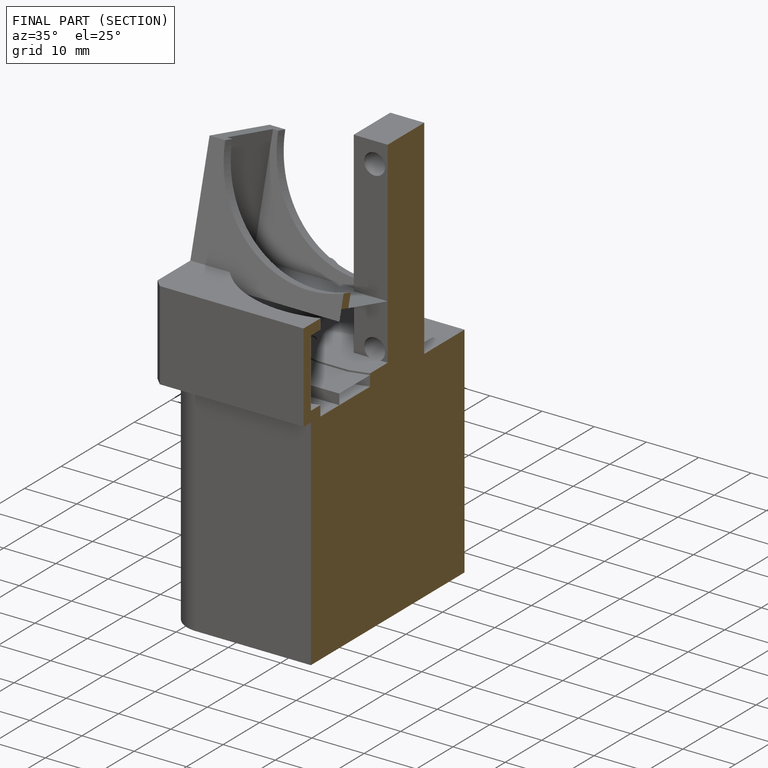
[diagram: finished part — half-section view (interior)]
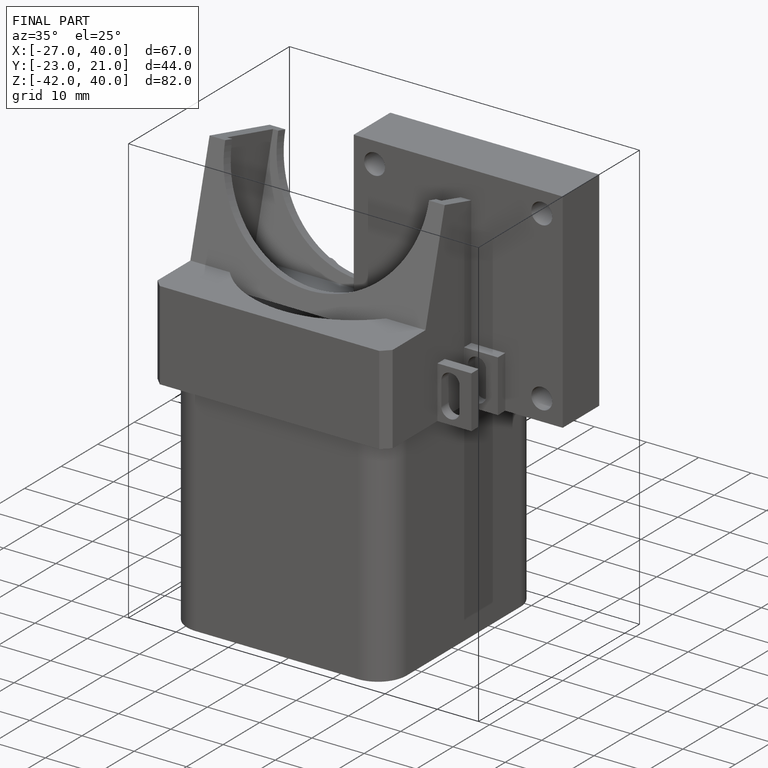
[diagram: finished part — iso view with bounding-box wireframe]
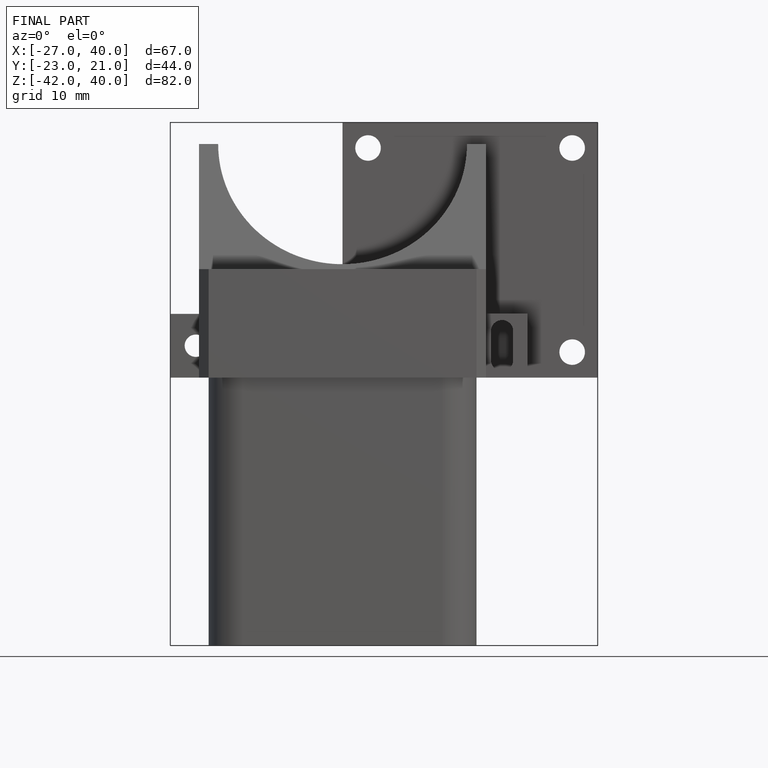
[diagram: finished part — front view with bounding-box wireframe]
